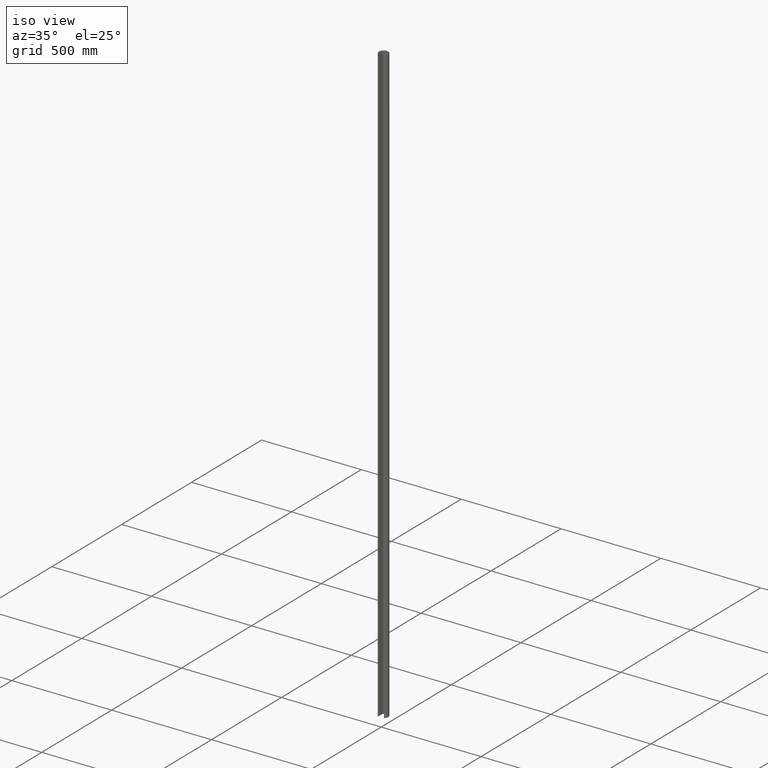
[diagram: clean part render]
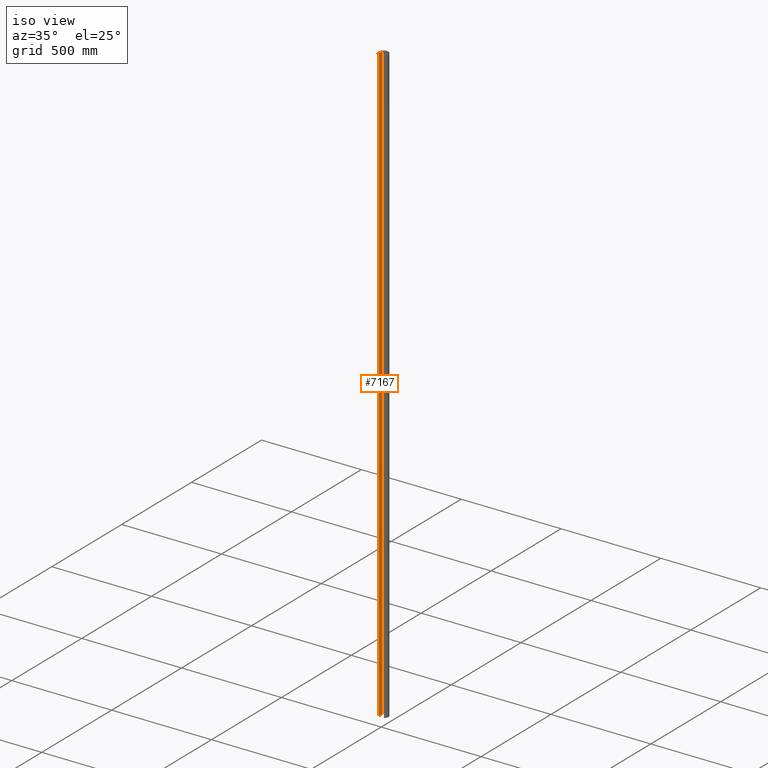
[diagram: same view with one face highlighted and labeled with its STEP entity id]
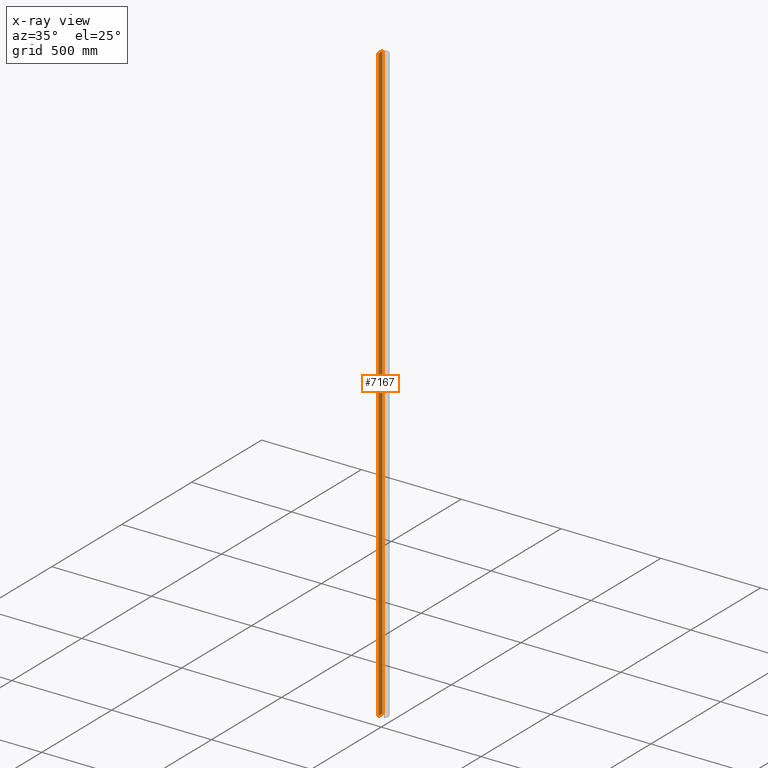
[diagram: x-ray of the same camera — body ghosted, the highlighted face saturated]
A machine part, iso view. The second image highlights one B-rep face of the part: STEP entity #7167.
The next image is the same camera in x-ray: the body ghosted, the highlighted face saturated — about 0% of this face is hidden behind the body in this view.
In plain terms, the highlighted planar face has unit normal (1, -0, 0).
Its self-contained STEP definition (entity closure, byte-faithful):
#332 = ORIENTED_EDGE ( 'NONE', *, *, #12797, .T. ) ;
#694 = VECTOR ( 'NONE', #7302, 1000.000000000000000 ) ;
#1989 = EDGE_CURVE ( 'NONE', #14310, #5856, #11343, .T. ) ;
#2523 = DIRECTION ( 'NONE',  ( 6.308085367188389994E-17, 1.000000000000000000, 0.000000000000000000 ) ) ;
#2555 = ORIENTED_EDGE ( 'NONE', *, *, #16207, .F. ) ;
#3276 = FACE_OUTER_BOUND ( 'NONE', #5968, .T. ) ;
#3559 = CARTESIAN_POINT ( 'NONE',  ( -13.50000000000000000, 1.148062247603463204, -1500.000000000000000 ) ) ;
#4393 = VECTOR ( 'NONE', #10114, 1000.000000000000000 ) ;
#4454 = VECTOR ( 'NONE', #2523, 1000.000000000000000 ) ;
#4484 = CARTESIAN_POINT ( 'NONE',  ( -13.50000000000000000, 1.148062247603463204, 1500.000000000000000 ) ) ;
#5854 = LINE ( 'NONE', #12714, #4393 ) ;
#5856 = VERTEX_POINT ( 'NONE', #4484 ) ;
#5968 = EDGE_LOOP ( 'NONE', ( #2555, #11184, #12330, #332 ) ) ;
#6223 = CARTESIAN_POINT ( 'NONE',  ( -13.50000000000000000, 1.148062247603463204, -1500.000000000000000 ) ) ;
#6776 = CARTESIAN_POINT ( 'NONE',  ( -13.49999999999999822, 28.64806224760345899, 1500.000000000000000 ) ) ;
#7167 = ADVANCED_FACE ( 'NONE', ( #3276 ), #12415, .T. ) ;
#7302 = DIRECTION ( 'NONE',  ( 0.000000000000000000, 0.000000000000000000, 1.000000000000000000 ) ) ;
#7609 = VERTEX_POINT ( 'NONE', #12676 ) ;
#10114 = DIRECTION ( 'NONE',  ( 6.308085367188389994E-17, 1.000000000000000000, 0.000000000000000000 ) ) ;
#11168 = EDGE_CURVE ( 'NONE', #14310, #7609, #11204, .T. ) ;
#11184 = ORIENTED_EDGE ( 'NONE', *, *, #1989, .F. ) ;
#11204 = LINE ( 'NONE', #15613, #4454 ) ;
#11343 = LINE ( 'NONE', #6223, #694 ) ;
#11802 = VERTEX_POINT ( 'NONE', #6776 ) ;
#12132 = DIRECTION ( 'NONE',  ( 0.000000000000000000, 0.000000000000000000, 1.000000000000000000 ) ) ;
#12330 = ORIENTED_EDGE ( 'NONE', *, *, #11168, .T. ) ;
#12415 = PLANE ( 'NONE',  #15866 ) ;
#12676 = CARTESIAN_POINT ( 'NONE',  ( -13.49999999999999822, 28.64806224760345899, -1500.000000000000000 ) ) ;
#12714 = CARTESIAN_POINT ( 'NONE',  ( -13.50000000000000000, 1.148062247603463204, 1500.000000000000000 ) ) ;
#12797 = EDGE_CURVE ( 'NONE', #7609, #11802, #16923, .T. ) ;
#13729 = DIRECTION ( 'NONE',  ( 6.308085367188388762E-17, 1.000000000000000000, 0.000000000000000000 ) ) ;
#13846 = CARTESIAN_POINT ( 'NONE',  ( -13.50000000000000000, 1.148062247603463204, -1500.000000000000000 ) ) ;
#14310 = VERTEX_POINT ( 'NONE', #3559 ) ;
#15077 = VECTOR ( 'NONE', #12132, 1000.000000000000000 ) ;
#15613 = CARTESIAN_POINT ( 'NONE',  ( -13.50000000000000000, 1.148062247603463204, -1500.000000000000000 ) ) ;
#15866 = AXIS2_PLACEMENT_3D ( 'NONE', #13846, #16439, #13729 ) ;
#16039 = CARTESIAN_POINT ( 'NONE',  ( -13.49999999999999822, 28.64806224760345899, -1500.000000000000000 ) ) ;
#16207 = EDGE_CURVE ( 'NONE', #5856, #11802, #5854, .T. ) ;
#16439 = DIRECTION ( 'NONE',  ( 1.000000000000000000, -6.308085367188388762E-17, 0.000000000000000000 ) ) ;
#16923 = LINE ( 'NONE', #16039, #15077 ) ;